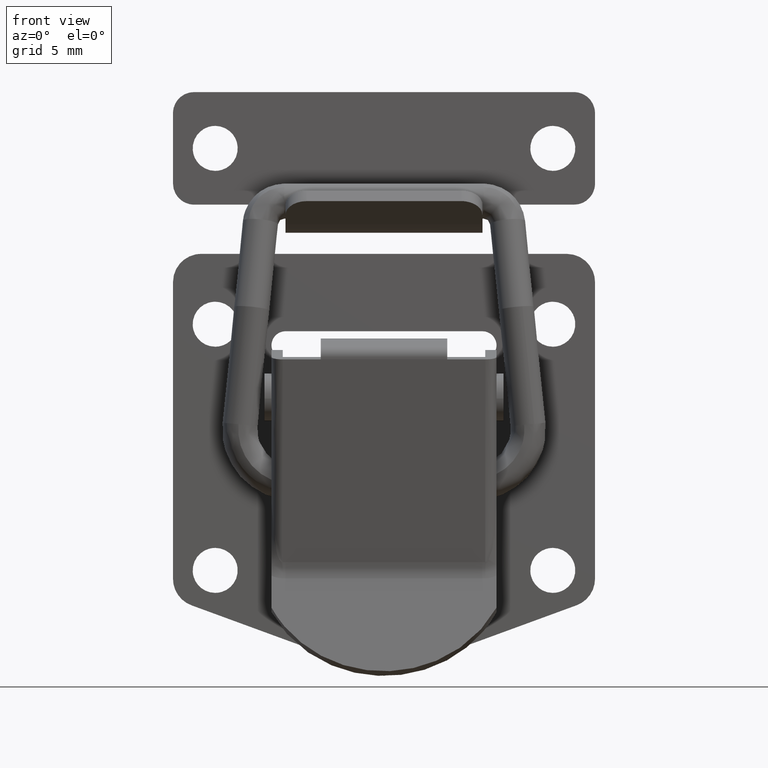
[diagram: clean part render]
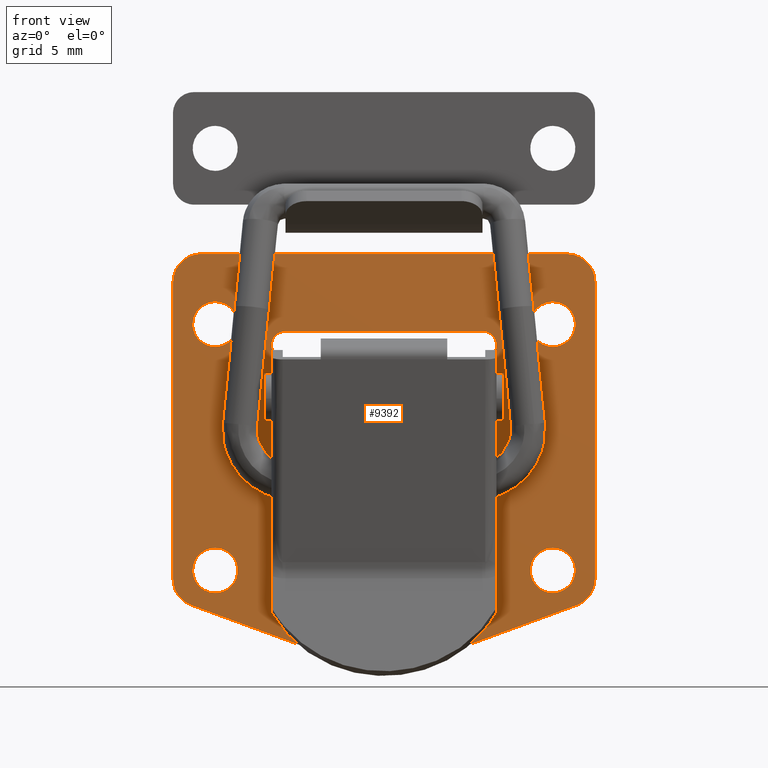
[diagram: same view with one face highlighted and labeled with its STEP entity id]
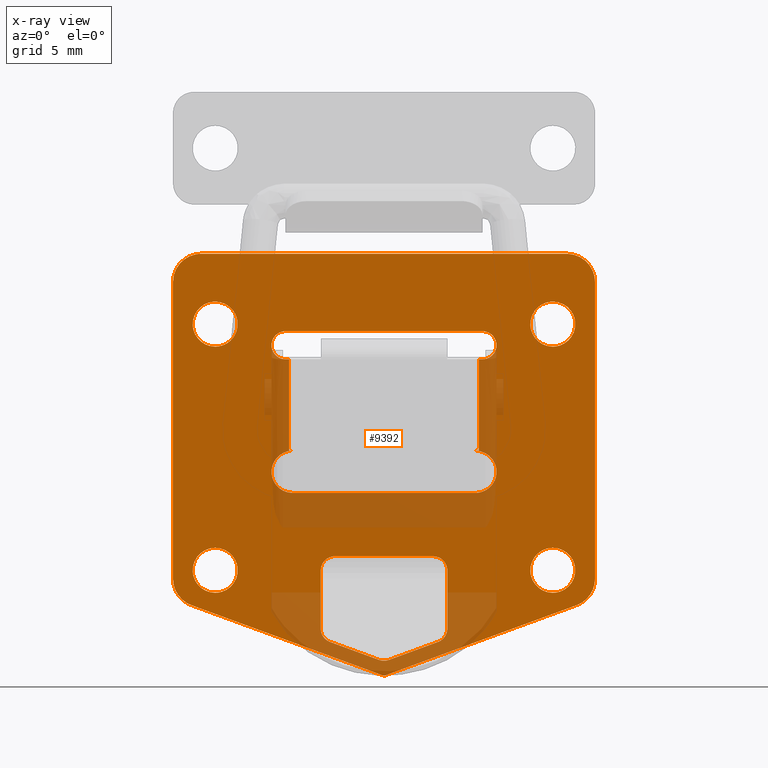
[diagram: x-ray of the same camera — body ghosted, the highlighted face saturated]
A machine part, front view. The second image highlights one B-rep face of the part: STEP entity #9392.
The next image is the same camera in x-ray: the body ghosted, the highlighted face saturated — about 16% of this face is hidden behind the body in this view.
In plain terms, the highlighted face is a freeform B-spline surface patch.
Its self-contained STEP definition (entity closure, byte-faithful):
#5978=CARTESIAN_POINT('',(1.499999999999946,-10.402984264085759,-8.847676707773115));
#5979=VERTEX_POINT('',#5978);
#5985=CARTESIAN_POINT('',(1.499999999999946,-12.0,-10.350000000000000));
#5986=VERTEX_POINT('',#5985);
#5987=CARTESIAN_POINT('',(1.499999999999946,-12.0,-10.350000000000000));
#5988=CARTESIAN_POINT('',(1.499999999999946,-10.494868488568480,-10.350000000000001));
#5989=CARTESIAN_POINT('',(1.499999999999946,-10.402984264085759,-8.847676707773115));
#5997=(BOUNDED_CURVE()B_SPLINE_CURVE(2,(#5987,#5988,#5989),.UNSPECIFIED.,.F.,.U.)B_SPLINE_CURVE_WITH_KNOTS((3,3),(0.500000000000000,0.739333168708942),.UNSPECIFIED.)CURVE()GEOMETRIC_REPRESENTATION_ITEM()RATIONAL_B_SPLINE_CURVE((1.0,0.719603751392060,0.976072484171628))REPRESENTATION_ITEM(''));
#5998=EDGE_CURVE('',#5986,#5979,#5997,.T.);
#6000=CARTESIAN_POINT('',(1.499999999999946,-13.588815242173380,-8.561145224477794));
#6001=VERTEX_POINT('',#6000);
#6002=CARTESIAN_POINT('',(1.499999999999946,-13.588815242173384,-8.561145224477794));
#6003=CARTESIAN_POINT('',(1.499999999999947,-13.600000000000001,-8.655241408484798));
#6004=CARTESIAN_POINT('',(1.499999999999946,-13.600000000000000,-8.750000000000000));
#6005=CARTESIAN_POINT('',(1.499999999999946,-13.600000000000003,-10.350000000000001));
#6006=CARTESIAN_POINT('',(1.499999999999946,-12.0,-10.350000000000000));
#6014=(BOUNDED_CURVE()B_SPLINE_CURVE(2,(#6002,#6003,#6004,#6005,#6006),.UNSPECIFIED.,.F.,.U.)B_SPLINE_CURVE_WITH_KNOTS((3,2,3),(0.229562473500456,0.250000000000000,0.500000000000000),.UNSPECIFIED.)CURVE()GEOMETRIC_REPRESENTATION_ITEM()RATIONAL_B_SPLINE_CURVE((0.956026754158117,0.976055948315854,1.0,0.707106781186548,1.0))REPRESENTATION_ITEM(''));
#6015=EDGE_CURVE('',#6001,#5986,#6014,.T.);
#6059=CARTESIAN_POINT('',(1.499999999999946,-12.0,-7.150000000000001));
#6060=VERTEX_POINT('',#6059);
#6061=CARTESIAN_POINT('',(1.499999999999946,-12.0,-7.150000000000001));
#6062=CARTESIAN_POINT('',(1.499999999999945,-13.421079241393583,-7.150000000000000));
#6063=CARTESIAN_POINT('',(1.499999999999947,-13.588815242173380,-8.561145224477794));
#6071=(BOUNDED_CURVE()B_SPLINE_CURVE(2,(#6061,#6062,#6063),.UNSPECIFIED.,.F.,.U.)B_SPLINE_CURVE_WITH_KNOTS((3,3),(0.0,0.229562473500456),.UNSPECIFIED.)CURVE()GEOMETRIC_REPRESENTATION_ITEM()RATIONAL_B_SPLINE_CURVE((1.0,0.731050832870694,0.956026754158117))REPRESENTATION_ITEM(''));
#6072=EDGE_CURVE('',#6060,#6001,#6071,.T.);
#6074=CARTESIAN_POINT('',(1.499999999999946,-10.402984264085767,-8.847676707773115));
#6075=CARTESIAN_POINT('',(1.499999999999946,-10.400000000000004,-8.798883463116059));
#6076=CARTESIAN_POINT('',(1.499999999999946,-10.400000000000000,-8.750000000000000));
#6077=CARTESIAN_POINT('',(1.499999999999946,-10.400000000000000,-7.150000000000002));
#6078=CARTESIAN_POINT('',(1.499999999999946,-12.0,-7.150000000000001));
#6086=(BOUNDED_CURVE()B_SPLINE_CURVE(2,(#6074,#6075,#6076,#6077,#6078),.UNSPECIFIED.,.F.,.U.)B_SPLINE_CURVE_WITH_KNOTS((3,2,3),(0.739333168708941,0.750000000000000,1.0),.UNSPECIFIED.)CURVE()GEOMETRIC_REPRESENTATION_ITEM()RATIONAL_B_SPLINE_CURVE((0.976072484171627,0.987503029794487,1.0,0.707106781186548,1.0))REPRESENTATION_ITEM(''));
#6087=EDGE_CURVE('',#5979,#6060,#6086,.T.);
#6164=CARTESIAN_POINT('',(1.499999999999946,13.597015735914241,-8.847676707773115));
#6165=VERTEX_POINT('',#6164);
#6171=CARTESIAN_POINT('',(1.499999999999946,12.0,-10.350000000000000));
#6172=VERTEX_POINT('',#6171);
#6173=CARTESIAN_POINT('',(1.499999999999946,12.0,-10.350000000000000));
#6174=CARTESIAN_POINT('',(1.499999999999946,13.505131511431522,-10.350000000000001));
#6175=CARTESIAN_POINT('',(1.499999999999946,13.597015735914235,-8.847676707773115));
#6183=(BOUNDED_CURVE()B_SPLINE_CURVE(2,(#6173,#6174,#6175),.UNSPECIFIED.,.F.,.U.)B_SPLINE_CURVE_WITH_KNOTS((3,3),(0.500000000000000,0.739333168708942),.UNSPECIFIED.)CURVE()GEOMETRIC_REPRESENTATION_ITEM()RATIONAL_B_SPLINE_CURVE((1.0,0.719603751392060,0.976072484171628))REPRESENTATION_ITEM(''));
#6184=EDGE_CURVE('',#6172,#6165,#6183,.T.);
#6186=CARTESIAN_POINT('',(1.499999999999946,10.411184757826620,-8.561145224477794));
#6187=VERTEX_POINT('',#6186);
#6188=CARTESIAN_POINT('',(1.499999999999946,10.411184757826621,-8.561145224477794));
#6189=CARTESIAN_POINT('',(1.499999999999946,10.400000000000004,-8.655241408484796));
#6190=CARTESIAN_POINT('',(1.499999999999946,10.400000000000000,-8.750000000000000));
#6191=CARTESIAN_POINT('',(1.499999999999946,10.400000000000000,-10.350000000000001));
#6192=CARTESIAN_POINT('',(1.499999999999946,12.0,-10.350000000000000));
#6200=(BOUNDED_CURVE()B_SPLINE_CURVE(2,(#6188,#6189,#6190,#6191,#6192),.UNSPECIFIED.,.F.,.U.)B_SPLINE_CURVE_WITH_KNOTS((3,2,3),(0.229562473500456,0.250000000000000,0.500000000000000),.UNSPECIFIED.)CURVE()GEOMETRIC_REPRESENTATION_ITEM()RATIONAL_B_SPLINE_CURVE((0.956026754158116,0.976055948315853,1.0,0.707106781186548,1.0))REPRESENTATION_ITEM(''));
#6201=EDGE_CURVE('',#6187,#6172,#6200,.T.);
#6245=CARTESIAN_POINT('',(1.499999999999946,12.0,-7.150000000000001));
#6246=VERTEX_POINT('',#6245);
#6247=CARTESIAN_POINT('',(1.499999999999946,12.0,-7.150000000000001));
#6248=CARTESIAN_POINT('',(1.499999999999946,10.578920758606422,-7.150000000000001));
#6249=CARTESIAN_POINT('',(1.499999999999946,10.411184757826621,-8.561145224477794));
#6257=(BOUNDED_CURVE()B_SPLINE_CURVE(2,(#6247,#6248,#6249),.UNSPECIFIED.,.F.,.U.)B_SPLINE_CURVE_WITH_KNOTS((3,3),(0.0,0.229562473500456),.UNSPECIFIED.)CURVE()GEOMETRIC_REPRESENTATION_ITEM()RATIONAL_B_SPLINE_CURVE((1.0,0.731050832870694,0.956026754158116))REPRESENTATION_ITEM(''));
#6258=EDGE_CURVE('',#6246,#6187,#6257,.T.);
#6260=CARTESIAN_POINT('',(1.499999999999946,13.597015735914233,-8.847676707773115));
#6261=CARTESIAN_POINT('',(1.499999999999946,13.600000000000007,-8.798883463116059));
#6262=CARTESIAN_POINT('',(1.499999999999946,13.600000000000000,-8.750000000000000));
#6263=CARTESIAN_POINT('',(1.499999999999946,13.600000000000003,-7.150000000000002));
#6264=CARTESIAN_POINT('',(1.499999999999946,12.0,-7.150000000000001));
#6272=(BOUNDED_CURVE()B_SPLINE_CURVE(2,(#6260,#6261,#6262,#6263,#6264),.UNSPECIFIED.,.F.,.U.)B_SPLINE_CURVE_WITH_KNOTS((3,2,3),(0.739333168708941,0.750000000000000,1.0),.UNSPECIFIED.)CURVE()GEOMETRIC_REPRESENTATION_ITEM()RATIONAL_B_SPLINE_CURVE((0.976072484171627,0.987503029794487,1.0,0.707106781186548,1.0))REPRESENTATION_ITEM(''));
#6273=EDGE_CURVE('',#6165,#6246,#6272,.T.);
#6350=CARTESIAN_POINT('',(1.499999999999946,13.597015735914241,-26.347676707773111));
#6351=VERTEX_POINT('',#6350);
#6357=CARTESIAN_POINT('',(1.499999999999946,12.0,-27.850000000000001));
#6358=VERTEX_POINT('',#6357);
#6359=CARTESIAN_POINT('',(1.499999999999946,12.0,-27.850000000000001));
#6360=CARTESIAN_POINT('',(1.499999999999946,13.505131511431522,-27.849999999999998));
#6361=CARTESIAN_POINT('',(1.499999999999946,13.597015735914235,-26.347676707773115));
#6369=(BOUNDED_CURVE()B_SPLINE_CURVE(2,(#6359,#6360,#6361),.UNSPECIFIED.,.F.,.U.)B_SPLINE_CURVE_WITH_KNOTS((3,3),(0.500000000000000,0.739333168708942),.UNSPECIFIED.)CURVE()GEOMETRIC_REPRESENTATION_ITEM()RATIONAL_B_SPLINE_CURVE((1.0,0.719603751392060,0.976072484171628))REPRESENTATION_ITEM(''));
#6370=EDGE_CURVE('',#6358,#6351,#6369,.T.);
#6372=CARTESIAN_POINT('',(1.499999999999946,10.411184757826620,-26.061145224477791));
#6373=VERTEX_POINT('',#6372);
#6374=CARTESIAN_POINT('',(1.499999999999946,10.411184757826620,-26.061145224477798));
#6375=CARTESIAN_POINT('',(1.499999999999947,10.400000000000004,-26.155241408484798));
#6376=CARTESIAN_POINT('',(1.499999999999946,10.400000000000000,-26.250000000000000));
#6377=CARTESIAN_POINT('',(1.499999999999946,10.400000000000000,-27.850000000000001));
#6378=CARTESIAN_POINT('',(1.499999999999946,12.0,-27.850000000000001));
#6386=(BOUNDED_CURVE()B_SPLINE_CURVE(2,(#6374,#6375,#6376,#6377,#6378),.UNSPECIFIED.,.F.,.U.)B_SPLINE_CURVE_WITH_KNOTS((3,2,3),(0.229562473500456,0.250000000000000,0.500000000000000),.UNSPECIFIED.)CURVE()GEOMETRIC_REPRESENTATION_ITEM()RATIONAL_B_SPLINE_CURVE((0.956026754158117,0.976055948315854,1.0,0.707106781186548,1.0))REPRESENTATION_ITEM(''));
#6387=EDGE_CURVE('',#6373,#6358,#6386,.T.);
#6431=CARTESIAN_POINT('',(1.499999999999946,12.0,-24.649999999999999));
#6432=VERTEX_POINT('',#6431);
#6433=CARTESIAN_POINT('',(1.499999999999946,12.0,-24.649999999999999));
#6434=CARTESIAN_POINT('',(1.499999999999945,10.578920758606420,-24.649999999999991));
#6435=CARTESIAN_POINT('',(1.499999999999947,10.411184757826620,-26.061145224477791));
#6443=(BOUNDED_CURVE()B_SPLINE_CURVE(2,(#6433,#6434,#6435),.UNSPECIFIED.,.F.,.U.)B_SPLINE_CURVE_WITH_KNOTS((3,3),(0.0,0.229562473500456),.UNSPECIFIED.)CURVE()GEOMETRIC_REPRESENTATION_ITEM()RATIONAL_B_SPLINE_CURVE((1.0,0.731050832870694,0.956026754158117))REPRESENTATION_ITEM(''));
#6444=EDGE_CURVE('',#6432,#6373,#6443,.T.);
#6446=CARTESIAN_POINT('',(1.499999999999947,13.597015735914241,-26.347676707773111));
#6447=CARTESIAN_POINT('',(1.499999999999946,13.600000000000007,-26.298883463116052));
#6448=CARTESIAN_POINT('',(1.499999999999946,13.600000000000000,-26.250000000000000));
#6449=CARTESIAN_POINT('',(1.499999999999946,13.600000000000003,-24.650000000000002));
#6450=CARTESIAN_POINT('',(1.499999999999946,12.0,-24.649999999999999));
#6458=(BOUNDED_CURVE()B_SPLINE_CURVE(2,(#6446,#6447,#6448,#6449,#6450),.UNSPECIFIED.,.F.,.U.)B_SPLINE_CURVE_WITH_KNOTS((3,2,3),(0.739333168708943,0.750000000000000,1.0),.UNSPECIFIED.)CURVE()GEOMETRIC_REPRESENTATION_ITEM()RATIONAL_B_SPLINE_CURVE((0.976072484171630,0.987503029794488,1.0,0.707106781186548,1.0))REPRESENTATION_ITEM(''));
#6459=EDGE_CURVE('',#6351,#6432,#6458,.T.);
#6536=CARTESIAN_POINT('',(1.499999999999946,-10.402984264085759,-26.347676707773111));
#6537=VERTEX_POINT('',#6536);
#6543=CARTESIAN_POINT('',(1.499999999999946,-12.0,-27.850000000000001));
#6544=VERTEX_POINT('',#6543);
#6545=CARTESIAN_POINT('',(1.499999999999946,-12.0,-27.850000000000001));
#6546=CARTESIAN_POINT('',(1.499999999999946,-10.494868488568480,-27.849999999999998));
#6547=CARTESIAN_POINT('',(1.499999999999946,-10.402984264085759,-26.347676707773115));
#6555=(BOUNDED_CURVE()B_SPLINE_CURVE(2,(#6545,#6546,#6547),.UNSPECIFIED.,.F.,.U.)B_SPLINE_CURVE_WITH_KNOTS((3,3),(0.500000000000000,0.739333168708942),.UNSPECIFIED.)CURVE()GEOMETRIC_REPRESENTATION_ITEM()RATIONAL_B_SPLINE_CURVE((1.0,0.719603751392060,0.976072484171628))REPRESENTATION_ITEM(''));
#6556=EDGE_CURVE('',#6544,#6537,#6555,.T.);
#6558=CARTESIAN_POINT('',(1.499999999999946,-13.588815242173380,-26.061145224477791));
#6559=VERTEX_POINT('',#6558);
#6560=CARTESIAN_POINT('',(1.499999999999946,-13.588815242173384,-26.061145224477787));
#6561=CARTESIAN_POINT('',(1.499999999999946,-13.599999999999998,-26.155241408484798));
#6562=CARTESIAN_POINT('',(1.499999999999946,-13.600000000000000,-26.250000000000000));
#6563=CARTESIAN_POINT('',(1.499999999999946,-13.600000000000003,-27.850000000000001));
#6564=CARTESIAN_POINT('',(1.499999999999946,-12.0,-27.850000000000001));
#6572=(BOUNDED_CURVE()B_SPLINE_CURVE(2,(#6560,#6561,#6562,#6563,#6564),.UNSPECIFIED.,.F.,.U.)B_SPLINE_CURVE_WITH_KNOTS((3,2,3),(0.229562473500456,0.250000000000000,0.500000000000000),.UNSPECIFIED.)CURVE()GEOMETRIC_REPRESENTATION_ITEM()RATIONAL_B_SPLINE_CURVE((0.956026754158116,0.976055948315853,1.0,0.707106781186548,1.0))REPRESENTATION_ITEM(''));
#6573=EDGE_CURVE('',#6559,#6544,#6572,.T.);
#6617=CARTESIAN_POINT('',(1.499999999999946,-12.0,-24.649999999999999));
#6618=VERTEX_POINT('',#6617);
#6619=CARTESIAN_POINT('',(1.499999999999946,-12.0,-24.649999999999999));
#6620=CARTESIAN_POINT('',(1.499999999999946,-13.421079241393580,-24.649999999999991));
#6621=CARTESIAN_POINT('',(1.499999999999947,-13.588815242173380,-26.061145224477794));
#6629=(BOUNDED_CURVE()B_SPLINE_CURVE(2,(#6619,#6620,#6621),.UNSPECIFIED.,.F.,.U.)B_SPLINE_CURVE_WITH_KNOTS((3,3),(0.0,0.229562473500456),.UNSPECIFIED.)CURVE()GEOMETRIC_REPRESENTATION_ITEM()RATIONAL_B_SPLINE_CURVE((1.0,0.731050832870694,0.956026754158116))REPRESENTATION_ITEM(''));
#6630=EDGE_CURVE('',#6618,#6559,#6629,.T.);
#6632=CARTESIAN_POINT('',(1.499999999999947,-10.402984264085761,-26.347676707773111));
#6633=CARTESIAN_POINT('',(1.499999999999946,-10.400000000000000,-26.298883463116052));
#6634=CARTESIAN_POINT('',(1.499999999999946,-10.400000000000000,-26.250000000000000));
#6635=CARTESIAN_POINT('',(1.499999999999946,-10.400000000000000,-24.650000000000002));
#6636=CARTESIAN_POINT('',(1.499999999999946,-12.0,-24.649999999999999));
#6644=(BOUNDED_CURVE()B_SPLINE_CURVE(2,(#6632,#6633,#6634,#6635,#6636),.UNSPECIFIED.,.F.,.U.)B_SPLINE_CURVE_WITH_KNOTS((3,2,3),(0.739333168708943,0.750000000000000,1.0),.UNSPECIFIED.)CURVE()GEOMETRIC_REPRESENTATION_ITEM()RATIONAL_B_SPLINE_CURVE((0.976072484171630,0.987503029794488,1.0,0.707106781186548,1.0))REPRESENTATION_ITEM(''));
#6645=EDGE_CURVE('',#6537,#6618,#6644,.T.);
#6920=CARTESIAN_POINT('',(1.499999999999914,6.750000000000000,-11.250000000000000));
#6921=VERTEX_POINT('',#6920);
#6927=CARTESIAN_POINT('',(1.499999999999914,6.750000000000000,-17.750000000000000));
#6928=VERTEX_POINT('',#6927);
#6929=CARTESIAN_POINT('',(1.499999999999914,6.750000000000000,-11.250000000000000));
#6930=CARTESIAN_POINT('',(1.499999999999914,6.750000000000000,-17.750000000000000));
#6931=QUASI_UNIFORM_CURVE('',1,(#6929,#6930),.UNSPECIFIED.,.F.,.U.);
#6932=EDGE_CURVE('',#6921,#6928,#6931,.T.);
#7023=CARTESIAN_POINT('',(1.499999999999914,-6.750000000000000,-17.750000000000000));
#7024=VERTEX_POINT('',#7023);
#7030=CARTESIAN_POINT('',(1.499999999999946,-6.750000000000000,-11.250000000000000));
#7031=VERTEX_POINT('',#7030);
#7032=CARTESIAN_POINT('',(1.499999999999946,-6.750000000000000,-11.250000000000000));
#7033=CARTESIAN_POINT('',(1.499999999999914,-6.750000000000000,-17.750000000000000));
#7034=QUASI_UNIFORM_CURVE('',1,(#7032,#7033),.UNSPECIFIED.,.F.,.U.);
#7035=EDGE_CURVE('',#7031,#7024,#7034,.T.);
#7120=CARTESIAN_POINT('',(1.499999999999946,7.0,-11.250000000000000));
#7121=VERTEX_POINT('',#7120);
#7122=CARTESIAN_POINT('',(1.499999999999946,7.0,-9.250000000000000));
#7123=VERTEX_POINT('',#7122);
#7124=CARTESIAN_POINT('',(1.499999999999946,7.0,-11.250000000000000));
#7125=CARTESIAN_POINT('',(1.499999999999946,8.0,-11.249999999999998));
#7126=CARTESIAN_POINT('',(1.499999999999946,8.0,-10.250000000000000));
#7127=CARTESIAN_POINT('',(1.499999999999946,8.0,-9.250000000000002));
#7128=CARTESIAN_POINT('',(1.499999999999946,7.0,-9.250000000000002));
#7136=(BOUNDED_CURVE()B_SPLINE_CURVE(2,(#7124,#7125,#7126,#7127,#7128),.UNSPECIFIED.,.F.,.U.)B_SPLINE_CURVE_WITH_KNOTS((3,2,3),(0.0,0.500000000000000,1.0),.UNSPECIFIED.)CURVE()GEOMETRIC_REPRESENTATION_ITEM()RATIONAL_B_SPLINE_CURVE((1.0,0.707106781186548,1.0,0.707106781186548,1.0))REPRESENTATION_ITEM(''));
#7137=EDGE_CURVE('',#7121,#7123,#7136,.T.);
#7190=CARTESIAN_POINT('',(1.499999999999914,6.750000000000000,-11.250000000000000));
#7191=CARTESIAN_POINT('',(1.499999999999946,7.0,-11.250000000000000));
#7192=QUASI_UNIFORM_CURVE('',1,(#7190,#7191),.UNSPECIFIED.,.F.,.U.);
#7193=EDGE_CURVE('',#6921,#7121,#7192,.T.);
#7227=CARTESIAN_POINT('',(1.499999999999946,6.499999921460180,-17.750000000000000));
#7228=VERTEX_POINT('',#7227);
#7238=CARTESIAN_POINT('',(1.499999999999946,6.499999921460180,-17.750000000000000));
#7239=CARTESIAN_POINT('',(1.499999999999914,6.750000000000000,-17.750000000000000));
#7240=QUASI_UNIFORM_CURVE('',1,(#7238,#7239),.UNSPECIFIED.,.F.,.U.);
#7241=EDGE_CURVE('',#7228,#6928,#7240,.T.);
#7283=CARTESIAN_POINT('',(1.499999999999946,6.500000000000000,-20.750000000000000));
#7284=VERTEX_POINT('',#7283);
#7285=CARTESIAN_POINT('',(1.499999999999946,6.500000000000000,-20.750000000000000));
#7286=CARTESIAN_POINT('',(1.499999999999946,7.366025421237731,-20.749999999999996));
#7287=CARTESIAN_POINT('',(1.499999999999946,7.799038118766628,-19.999999977327509));
#7288=CARTESIAN_POINT('',(1.499999999999946,8.232050816295523,-19.249999954655014));
#7289=CARTESIAN_POINT('',(1.499999999999946,7.799038079496717,-18.499999954655010));
#7290=CARTESIAN_POINT('',(1.499999999999946,7.366025342697910,-17.749999954655017));
#7291=CARTESIAN_POINT('',(1.499999999999946,6.499999921460180,-17.750000000000000));
#7299=(BOUNDED_CURVE()B_SPLINE_CURVE(2,(#7285,#7286,#7287,#7288,#7289,#7290,#7291),.UNSPECIFIED.,.F.,.U.)B_SPLINE_CURVE_WITH_KNOTS((3,2,2,3),(0.0,0.333333333333333,0.666666666666667,1.0),.UNSPECIFIED.)CURVE()GEOMETRIC_REPRESENTATION_ITEM()RATIONAL_B_SPLINE_CURVE((1.0,0.866025399421115,1.0,0.866025399421115,1.0,0.866025399421115,1.0))REPRESENTATION_ITEM(''));
#7300=EDGE_CURVE('',#7284,#7228,#7299,.T.);
#7315=CARTESIAN_POINT('',(1.499999999999946,-6.500000000000000,-20.750000000000000));
#7316=VERTEX_POINT('',#7315);
#7317=CARTESIAN_POINT('',(1.499999999999946,-6.500000000000000,-20.750000000000000));
#7318=CARTESIAN_POINT('',(1.499999999999946,6.500000000000000,-20.750000000000000));
#7319=QUASI_UNIFORM_CURVE('',1,(#7317,#7318),.UNSPECIFIED.,.F.,.U.);
#7320=EDGE_CURVE('',#7316,#7284,#7319,.T.);
#7356=CARTESIAN_POINT('',(1.499999999999946,-6.500000000000000,-17.750000000000000));
#7357=VERTEX_POINT('',#7356);
#7380=CARTESIAN_POINT('',(1.499999999999946,-6.500000000000000,-17.750000000000000));
#7381=CARTESIAN_POINT('',(1.499999999999946,-8.0,-17.750000000000000));
#7382=CARTESIAN_POINT('',(1.499999999999946,-8.0,-19.250000000000000));
#7383=CARTESIAN_POINT('',(1.499999999999946,-8.0,-20.749999999999996));
#7384=CARTESIAN_POINT('',(1.499999999999946,-6.500000000000000,-20.750000000000000));
#7392=(BOUNDED_CURVE()B_SPLINE_CURVE(2,(#7380,#7381,#7382,#7383,#7384),.UNSPECIFIED.,.F.,.U.)B_SPLINE_CURVE_WITH_KNOTS((3,2,3),(0.0,0.500000000000000,1.0),.UNSPECIFIED.)CURVE()GEOMETRIC_REPRESENTATION_ITEM()RATIONAL_B_SPLINE_CURVE((1.0,0.707106781186548,1.0,0.707106781186548,1.0))REPRESENTATION_ITEM(''));
#7393=EDGE_CURVE('',#7357,#7316,#7392,.T.);
#7410=CARTESIAN_POINT('',(1.499999999999946,-6.500000000000000,-17.750000000000000));
#7411=CARTESIAN_POINT('',(1.499999999999914,-6.750000000000000,-17.750000000000000));
#7412=QUASI_UNIFORM_CURVE('',1,(#7410,#7411),.UNSPECIFIED.,.F.,.U.);
#7413=EDGE_CURVE('',#7357,#7024,#7412,.T.);
#7458=CARTESIAN_POINT('',(1.499999999999946,-6.999999982546651,-11.250000000000000));
#7459=VERTEX_POINT('',#7458);
#7460=CARTESIAN_POINT('',(1.499999999999946,-6.999999982546651,-11.250000000000000));
#7461=CARTESIAN_POINT('',(1.499999999999946,-6.750000000000000,-11.250000000000000));
#7462=QUASI_UNIFORM_CURVE('',1,(#7460,#7461),.UNSPECIFIED.,.F.,.U.);
#7463=EDGE_CURVE('',#7459,#7031,#7462,.T.);
#7491=CARTESIAN_POINT('',(1.499999999999946,-7.000000052359820,-9.250000000000000));
#7492=VERTEX_POINT('',#7491);
#7493=CARTESIAN_POINT('',(1.499999999999946,-7.000000052359820,-9.250000000000002));
#7494=CARTESIAN_POINT('',(1.499999999999946,-8.000000034906583,-9.250000052359821));
#7495=CARTESIAN_POINT('',(1.499999999999946,-8.0,-10.250000034906581));
#7496=CARTESIAN_POINT('',(1.499999999999946,-7.999999965093418,-11.250000017453351));
#7497=CARTESIAN_POINT('',(1.499999999999946,-6.999999982546651,-11.250000000000000));
#7505=(BOUNDED_CURVE()B_SPLINE_CURVE(2,(#7493,#7494,#7495,#7496,#7497),.UNSPECIFIED.,.F.,.U.)B_SPLINE_CURVE_WITH_KNOTS((3,2,3),(0.0,0.500000000000000,1.0),.UNSPECIFIED.)CURVE()GEOMETRIC_REPRESENTATION_ITEM()RATIONAL_B_SPLINE_CURVE((1.0,0.707106787357198,1.0,0.707106787357198,1.0))REPRESENTATION_ITEM(''));
#7506=EDGE_CURVE('',#7492,#7459,#7505,.T.);
#7539=CARTESIAN_POINT('',(1.499999999999946,7.0,-9.250000000000000));
#7540=CARTESIAN_POINT('',(1.499999999999946,-7.000000052359820,-9.250000000000000));
#7541=QUASI_UNIFORM_CURVE('',1,(#7539,#7540),.UNSPECIFIED.,.F.,.U.);
#7542=EDGE_CURVE('',#7123,#7492,#7541,.T.);
#7568=CARTESIAN_POINT('',(1.499999999999946,4.500000000000000,-26.250007000000000));
#7569=VERTEX_POINT('',#7568);
#7570=CARTESIAN_POINT('',(1.499999999999946,3.500000000000000,-25.250007000000000));
#7571=VERTEX_POINT('',#7570);
#7572=CARTESIAN_POINT('',(1.499999999999946,4.500000000000001,-26.250007000000000));
#7573=CARTESIAN_POINT('',(1.499999999999946,4.500000000000002,-25.250006999999993));
#7574=CARTESIAN_POINT('',(1.499999999999946,3.500000000000000,-25.250007000000000));
#7582=(BOUNDED_CURVE()B_SPLINE_CURVE(2,(#7572,#7573,#7574),.UNSPECIFIED.,.F.,.U.)CURVE()GEOMETRIC_REPRESENTATION_ITEM()QUASI_UNIFORM_CURVE()RATIONAL_B_SPLINE_CURVE((1.0,0.707106781186548,1.0))REPRESENTATION_ITEM(''));
#7583=EDGE_CURVE('',#7569,#7571,#7582,.T.);
#7685=CARTESIAN_POINT('',(1.499999999999946,3.844255016984520,-31.340438118548001));
#7686=VERTEX_POINT('',#7685);
#7687=CARTESIAN_POINT('',(1.499999999999946,4.500000000000000,-30.401561937531049));
#7688=VERTEX_POINT('',#7687);
#7689=CARTESIAN_POINT('',(1.499999999999946,3.844255016984521,-31.340438118548011));
#7690=CARTESIAN_POINT('',(1.499999999999946,4.500000000000001,-31.099998000000120));
#7691=CARTESIAN_POINT('',(1.499999999999946,4.500000000000001,-30.401561937531049));
#7699=(BOUNDED_CURVE()B_SPLINE_CURVE(2,(#7689,#7690,#7691),.UNSPECIFIED.,.F.,.U.)CURVE()GEOMETRIC_REPRESENTATION_ITEM()QUASI_UNIFORM_CURVE()RATIONAL_B_SPLINE_CURVE((1.0,0.819833829804712,1.0))REPRESENTATION_ITEM(''));
#7700=EDGE_CURVE('',#7686,#7688,#7699,.T.);
#7802=CARTESIAN_POINT('',(1.499999999999946,-0.344255016984519,-32.623773007436903));
#7803=VERTEX_POINT('',#7802);
#7804=CARTESIAN_POINT('',(1.499999999999946,0.344255016984519,-32.623773007436903));
#7805=VERTEX_POINT('',#7804);
#7806=CARTESIAN_POINT('',(1.499999999999946,-0.344255016984522,-32.623773007436910));
#7807=CARTESIAN_POINT('',(1.499999999999946,-1.626303E-016,-32.750000000000121));
#7808=CARTESIAN_POINT('',(1.499999999999946,0.344255016984522,-32.623773007436910));
#7816=(BOUNDED_CURVE()B_SPLINE_CURVE(2,(#7806,#7807,#7808),.UNSPECIFIED.,.F.,.U.)CURVE()GEOMETRIC_REPRESENTATION_ITEM()QUASI_UNIFORM_CURVE()RATIONAL_B_SPLINE_CURVE((1.0,0.938876181016957,1.0))REPRESENTATION_ITEM(''));
#7817=EDGE_CURVE('',#7803,#7805,#7816,.T.);
#7919=CARTESIAN_POINT('',(1.499999999999946,-4.500000000000000,-30.401561937531049));
#7920=VERTEX_POINT('',#7919);
#7921=CARTESIAN_POINT('',(1.499999999999946,-3.844255016984520,-31.340438118548001));
#7922=VERTEX_POINT('',#7921);
#7923=CARTESIAN_POINT('',(1.499999999999946,-4.500000000000001,-30.401561937531049));
#7924=CARTESIAN_POINT('',(1.499999999999946,-4.500000000000002,-31.099998000000109));
#7925=CARTESIAN_POINT('',(1.499999999999946,-3.844255016984522,-31.340438118548011));
#7933=(BOUNDED_CURVE()B_SPLINE_CURVE(2,(#7923,#7924,#7925),.UNSPECIFIED.,.F.,.U.)CURVE()GEOMETRIC_REPRESENTATION_ITEM()QUASI_UNIFORM_CURVE()RATIONAL_B_SPLINE_CURVE((1.0,0.819833829804712,1.0))REPRESENTATION_ITEM(''));
#7934=EDGE_CURVE('',#7920,#7922,#7933,.T.);
#8036=CARTESIAN_POINT('',(1.499999999999946,-3.500000000000000,-25.250007000000000));
#8037=VERTEX_POINT('',#8036);
#8038=CARTESIAN_POINT('',(1.499999999999946,-4.500000000000000,-26.250007000000000));
#8039=VERTEX_POINT('',#8038);
#8040=CARTESIAN_POINT('',(1.499999999999946,-3.500000000000000,-25.250007000000000));
#8041=CARTESIAN_POINT('',(1.499999999999946,-4.500000000000002,-25.250006999999993));
#8042=CARTESIAN_POINT('',(1.499999999999946,-4.500000000000001,-26.250007000000000));
#8050=(BOUNDED_CURVE()B_SPLINE_CURVE(2,(#8040,#8041,#8042),.UNSPECIFIED.,.F.,.U.)CURVE()GEOMETRIC_REPRESENTATION_ITEM()QUASI_UNIFORM_CURVE()RATIONAL_B_SPLINE_CURVE((1.0,0.707106781186548,1.0))REPRESENTATION_ITEM(''));
#8051=EDGE_CURVE('',#8037,#8039,#8050,.T.);
#8817=CARTESIAN_POINT('',(1.499999999999946,4.500000000000000,-30.401561937531049));
#8818=CARTESIAN_POINT('',(1.499999999999946,4.500000000000000,-26.250007000000000));
#8819=QUASI_UNIFORM_CURVE('',1,(#8817,#8818),.UNSPECIFIED.,.F.,.U.);
#8820=EDGE_CURVE('',#7688,#7569,#8819,.T.);
#8833=CARTESIAN_POINT('',(1.499999999999946,0.344255016984519,-32.623773007436903));
#8834=CARTESIAN_POINT('',(1.499999999999946,3.844255016984520,-31.340438118548001));
#8835=QUASI_UNIFORM_CURVE('',1,(#8833,#8834),.UNSPECIFIED.,.F.,.U.);
#8836=EDGE_CURVE('',#7805,#7686,#8835,.T.);
#8849=CARTESIAN_POINT('',(1.499999999999946,-3.844255016984520,-31.340438118548001));
#8850=CARTESIAN_POINT('',(1.499999999999946,-0.344255016984519,-32.623773007436903));
#8851=QUASI_UNIFORM_CURVE('',1,(#8849,#8850),.UNSPECIFIED.,.F.,.U.);
#8852=EDGE_CURVE('',#7922,#7803,#8851,.T.);
#8865=CARTESIAN_POINT('',(1.499999999999946,-4.500000000000000,-26.250007000000000));
#8866=CARTESIAN_POINT('',(1.499999999999946,-4.500000000000000,-30.401561937531049));
#8867=QUASI_UNIFORM_CURVE('',1,(#8865,#8866),.UNSPECIFIED.,.F.,.U.);
#8868=EDGE_CURVE('',#8039,#7920,#8867,.T.);
#8883=CARTESIAN_POINT('',(1.499999999999946,3.500000000000000,-25.250007000000000));
#8884=CARTESIAN_POINT('',(1.499999999999946,-3.500000000000000,-25.250007000000000));
#8885=QUASI_UNIFORM_CURVE('',1,(#8883,#8884),.UNSPECIFIED.,.F.,.U.);
#8886=EDGE_CURVE('',#7571,#8037,#8885,.T.);
#8915=CARTESIAN_POINT('',(1.499999999999946,15.0,-26.853126000000099));
#8916=VERTEX_POINT('',#8915);
#8917=CARTESIAN_POINT('',(1.499999999999946,15.0,-5.750000000000080));
#8918=VERTEX_POINT('',#8917);
#8919=CARTESIAN_POINT('',(1.499999999999946,15.0,-26.853126000000099));
#8920=CARTESIAN_POINT('',(1.499999999999946,15.0,-5.750000000000080));
#8921=QUASI_UNIFORM_CURVE('',1,(#8919,#8920),.UNSPECIFIED.,.F.,.U.);
#8922=EDGE_CURVE('',#8916,#8918,#8921,.T.);
#8960=CARTESIAN_POINT('',(1.499999999999946,13.688477000000100,-28.730896000000101));
#8961=VERTEX_POINT('',#8960);
#8962=CARTESIAN_POINT('',(1.499999999999946,13.688477000000100,-28.730896000000101));
#8963=CARTESIAN_POINT('',(1.499999999999947,14.999979583514595,-28.250011454301848));
#8964=CARTESIAN_POINT('',(1.499999999999946,14.999999999999980,-26.853126000000099));
#8972=(BOUNDED_CURVE()B_SPLINE_CURVE(2,(#8962,#8963,#8964),.UNSPECIFIED.,.F.,.U.)CURVE()GEOMETRIC_REPRESENTATION_ITEM()QUASI_UNIFORM_CURVE()RATIONAL_B_SPLINE_CURVE((1.0,0.819837953118362,1.0))REPRESENTATION_ITEM(''));
#8973=EDGE_CURVE('',#8961,#8916,#8972,.T.);
#9004=CARTESIAN_POINT('',(1.499999999999946,0.0,-33.750006999999997));
#9005=VERTEX_POINT('',#9004);
#9006=CARTESIAN_POINT('',(1.499999999999946,0.0,-33.750006999999997));
#9007=CARTESIAN_POINT('',(1.499999999999946,13.688477000000100,-28.730896000000101));
#9008=QUASI_UNIFORM_CURVE('',1,(#9006,#9007),.UNSPECIFIED.,.F.,.U.);
#9009=EDGE_CURVE('',#9005,#8961,#9008,.T.);
#9032=CARTESIAN_POINT('',(1.499999999999946,-13.688509153190020,-28.730878684986500));
#9033=VERTEX_POINT('',#9032);
#9034=CARTESIAN_POINT('',(1.499999999999946,-13.688509153190020,-28.730878684986500));
#9035=CARTESIAN_POINT('',(1.499999999999946,0.0,-33.750006999999997));
#9036=QUASI_UNIFORM_CURVE('',1,(#9034,#9035),.UNSPECIFIED.,.F.,.U.);
#9037=EDGE_CURVE('',#9033,#9005,#9036,.T.);
#9069=CARTESIAN_POINT('',(1.499999999999946,-15.0,-26.853126000000099));
#9070=VERTEX_POINT('',#9069);
#9071=CARTESIAN_POINT('',(1.499999999999946,-15.0,-26.853126000000099));
#9072=CARTESIAN_POINT('',(1.499999999999946,-14.999999999999996,-28.249998822812231));
#9073=CARTESIAN_POINT('',(1.499999999999946,-13.688509153190010,-28.730878684986489));
#9081=(BOUNDED_CURVE()B_SPLINE_CURVE(2,(#9071,#9072,#9073),.UNSPECIFIED.,.F.,.U.)CURVE()GEOMETRIC_REPRESENTATION_ITEM()QUASI_UNIFORM_CURVE()RATIONAL_B_SPLINE_CURVE((1.0,0.819833695512391,1.0))REPRESENTATION_ITEM(''));
#9082=EDGE_CURVE('',#9070,#9033,#9081,.T.);
#9113=CARTESIAN_POINT('',(1.499999999999946,-15.0,-5.750000174533010));
#9114=VERTEX_POINT('',#9113);
#9115=CARTESIAN_POINT('',(1.499999999999946,-15.0,-5.750000174533010));
#9116=CARTESIAN_POINT('',(1.499999999999946,-15.0,-26.853126000000099));
#9117=QUASI_UNIFORM_CURVE('',1,(#9115,#9116),.UNSPECIFIED.,.F.,.U.);
#9118=EDGE_CURVE('',#9114,#9070,#9117,.T.);
#9150=CARTESIAN_POINT('',(1.499999999999946,-13.0,-3.750000000000085));
#9151=VERTEX_POINT('',#9150);
#9152=CARTESIAN_POINT('',(1.499999999999946,-13.0,-3.750000000000090));
#9153=CARTESIAN_POINT('',(1.499999999999946,-13.828427175865700,-3.750000000000090));
#9154=CARTESIAN_POINT('',(1.499999999999946,-14.414213624079800,-4.335786499333702));
#9155=CARTESIAN_POINT('',(1.499999999999946,-15.000000072293895,-4.921572998667315));
#9156=CARTESIAN_POINT('',(1.499999999999946,-14.999999999999989,-5.750000174533011));
#9164=(BOUNDED_CURVE()B_SPLINE_CURVE(2,(#9152,#9153,#9154,#9155,#9156),.UNSPECIFIED.,.F.,.U.)B_SPLINE_CURVE_WITH_KNOTS((3,2,3),(0.0,0.500000000000000,1.0),.UNSPECIFIED.)CURVE()GEOMETRIC_REPRESENTATION_ITEM()RATIONAL_B_SPLINE_CURVE((1.0,0.923879524162429,1.0,0.923879524162429,1.0))REPRESENTATION_ITEM(''));
#9165=EDGE_CURVE('',#9151,#9114,#9164,.T.);
#9198=CARTESIAN_POINT('',(1.499999999999946,13.0,-3.750000000000085));
#9199=VERTEX_POINT('',#9198);
#9200=CARTESIAN_POINT('',(1.499999999999946,13.0,-3.750000000000085));
#9201=CARTESIAN_POINT('',(1.499999999999946,-13.0,-3.750000000000085));
#9202=QUASI_UNIFORM_CURVE('',1,(#9200,#9201),.UNSPECIFIED.,.F.,.U.);
#9203=EDGE_CURVE('',#9199,#9151,#9202,.T.);
#9235=CARTESIAN_POINT('',(1.499999999999946,15.0,-5.750000000000080));
#9236=CARTESIAN_POINT('',(1.499999999999946,14.999999999999995,-3.750000000000080));
#9237=CARTESIAN_POINT('',(1.499999999999946,13.0,-3.750000000000080));
#9245=(BOUNDED_CURVE()B_SPLINE_CURVE(2,(#9235,#9236,#9237),.UNSPECIFIED.,.F.,.U.)CURVE()GEOMETRIC_REPRESENTATION_ITEM()QUASI_UNIFORM_CURVE()RATIONAL_B_SPLINE_CURVE((1.0,0.707106781186548,1.0))REPRESENTATION_ITEM(''));
#9246=EDGE_CURVE('',#8918,#9199,#9245,.T.);
#9326=CARTESIAN_POINT('',(1.499999999999914,-16.498499941854170,-2.251499708495925));
#9327=CARTESIAN_POINT('',(1.499999999999914,16.498500746516878,-2.251499708495925));
#9328=CARTESIAN_POINT('',(1.499999999999914,-16.498499941854170,-35.248508096167050));
#9329=CARTESIAN_POINT('',(1.499999999999914,16.498500746516878,-35.248508096167050));
#9330=B_SPLINE_SURFACE_WITH_KNOTS('',1,1,((#9326,#9328),(#9327,#9329)),.UNSPECIFIED.,.F.,.F.,.U.,(2,2),(2,2),(0.0,32.997000688371060),(0.0,32.997008387671123),.UNSPECIFIED.);
#9331=ORIENTED_EDGE('',*,*,#9246,.F.);
#9332=ORIENTED_EDGE('',*,*,#8922,.F.);
#9333=ORIENTED_EDGE('',*,*,#8973,.F.);
#9334=ORIENTED_EDGE('',*,*,#9009,.F.);
#9335=ORIENTED_EDGE('',*,*,#9037,.F.);
#9336=ORIENTED_EDGE('',*,*,#9082,.F.);
#9337=ORIENTED_EDGE('',*,*,#9118,.F.);
#9338=ORIENTED_EDGE('',*,*,#9165,.F.);
#9339=ORIENTED_EDGE('',*,*,#9203,.F.);
#9340=EDGE_LOOP('',(#9331,#9332,#9333,#9334,#9335,#9336,#9337,#9338,#9339));
#9341=FACE_OUTER_BOUND('',#9340,.T.);
#9342=ORIENTED_EDGE('',*,*,#8820,.T.);
#9343=ORIENTED_EDGE('',*,*,#7583,.T.);
#9344=ORIENTED_EDGE('',*,*,#8886,.T.);
#9345=ORIENTED_EDGE('',*,*,#8051,.T.);
#9346=ORIENTED_EDGE('',*,*,#8868,.T.);
#9347=ORIENTED_EDGE('',*,*,#7934,.T.);
#9348=ORIENTED_EDGE('',*,*,#8852,.T.);
#9349=ORIENTED_EDGE('',*,*,#7817,.T.);
#9350=ORIENTED_EDGE('',*,*,#8836,.T.);
#9351=ORIENTED_EDGE('',*,*,#7700,.T.);
#9352=EDGE_LOOP('',(#9342,#9343,#9344,#9345,#9346,#9347,#9348,#9349,#9350,#9351));
#9353=FACE_BOUND('',#9352,.T.);
#9354=ORIENTED_EDGE('',*,*,#7241,.T.);
#9355=ORIENTED_EDGE('',*,*,#6932,.F.);
#9356=ORIENTED_EDGE('',*,*,#7193,.T.);
#9357=ORIENTED_EDGE('',*,*,#7137,.T.);
#9358=ORIENTED_EDGE('',*,*,#7542,.T.);
#9359=ORIENTED_EDGE('',*,*,#7506,.T.);
#9360=ORIENTED_EDGE('',*,*,#7463,.T.);
#9361=ORIENTED_EDGE('',*,*,#7035,.T.);
#9362=ORIENTED_EDGE('',*,*,#7413,.F.);
#9363=ORIENTED_EDGE('',*,*,#7393,.T.);
#9364=ORIENTED_EDGE('',*,*,#7320,.T.);
#9365=ORIENTED_EDGE('',*,*,#7300,.T.);
#9366=EDGE_LOOP('',(#9354,#9355,#9356,#9357,#9358,#9359,#9360,#9361,#9362,#9363,#9364,#9365));
#9367=FACE_BOUND('',#9366,.T.);
#9368=ORIENTED_EDGE('',*,*,#6556,.T.);
#9369=ORIENTED_EDGE('',*,*,#6645,.T.);
#9370=ORIENTED_EDGE('',*,*,#6630,.T.);
#9371=ORIENTED_EDGE('',*,*,#6573,.T.);
#9372=EDGE_LOOP('',(#9368,#9369,#9370,#9371));
#9373=FACE_BOUND('',#9372,.T.);
#9374=ORIENTED_EDGE('',*,*,#6370,.T.);
#9375=ORIENTED_EDGE('',*,*,#6459,.T.);
#9376=ORIENTED_EDGE('',*,*,#6444,.T.);
#9377=ORIENTED_EDGE('',*,*,#6387,.T.);
#9378=EDGE_LOOP('',(#9374,#9375,#9376,#9377));
#9379=FACE_BOUND('',#9378,.T.);
#9380=ORIENTED_EDGE('',*,*,#6184,.T.);
#9381=ORIENTED_EDGE('',*,*,#6273,.T.);
#9382=ORIENTED_EDGE('',*,*,#6258,.T.);
#9383=ORIENTED_EDGE('',*,*,#6201,.T.);
#9384=EDGE_LOOP('',(#9380,#9381,#9382,#9383));
#9385=FACE_BOUND('',#9384,.T.);
#9386=ORIENTED_EDGE('',*,*,#5998,.T.);
#9387=ORIENTED_EDGE('',*,*,#6087,.T.);
#9388=ORIENTED_EDGE('',*,*,#6072,.T.);
#9389=ORIENTED_EDGE('',*,*,#6015,.T.);
#9390=EDGE_LOOP('',(#9386,#9387,#9388,#9389));
#9391=FACE_BOUND('',#9390,.T.);
#9392=ADVANCED_FACE('',(#9341,#9353,#9367,#9373,#9379,#9385,#9391),#9330,.T.);